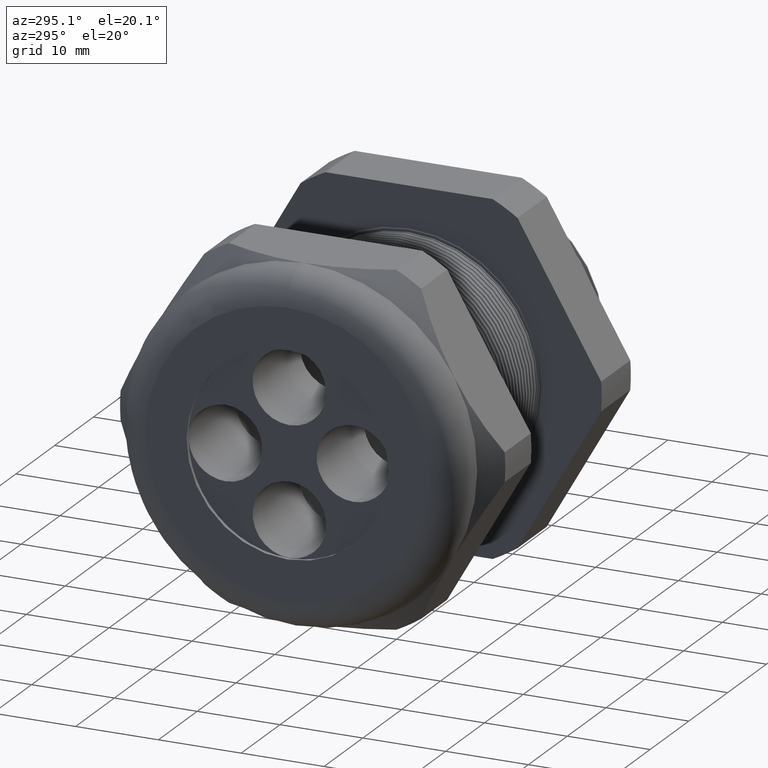
[diagram: clean part render]
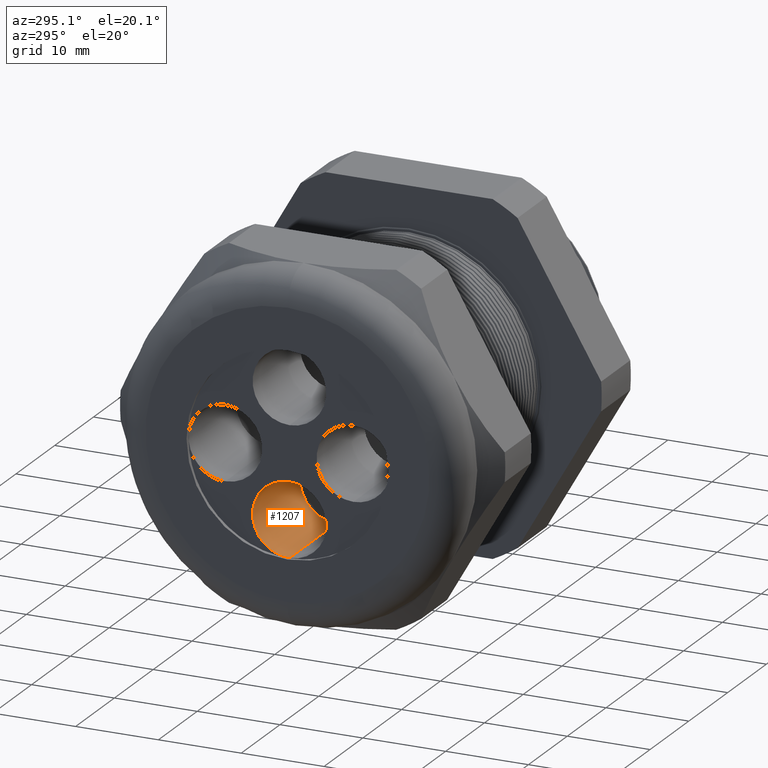
[diagram: same view with one face highlighted and labeled with its STEP entity id]
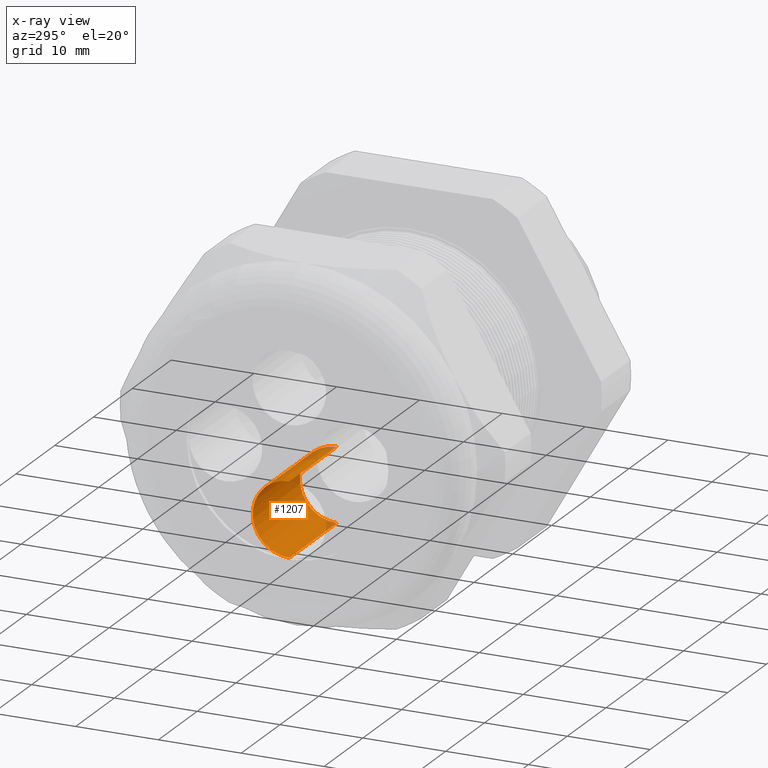
[diagram: x-ray of the same camera — body ghosted, the highlighted face saturated]
A machine part, auxiliary view. The second image highlights one B-rep face of the part: STEP entity #1207.
The next image is the same camera in x-ray: the body ghosted, the highlighted face saturated — about 7% of this face is hidden behind the body in this view.
In plain terms, the highlighted cylindrical surface (partial cylindrical patch) has radius 4.445 mm, axis along (-1, 0, 0).
Its self-contained STEP definition (entity closure, byte-faithful):
#245 = VERTEX_POINT ( 'NONE', #2401 ) ;
#246 = VERTEX_POINT ( 'NONE', #2400 ) ;
#257 = VERTEX_POINT ( 'NONE', #2448 ) ;
#287 = VERTEX_POINT ( 'NONE', #2476 ) ;
#289 = EDGE_CURVE ( 'NONE', #257, #246, #2474, .T. ) ;
#1167 = EDGE_CURVE ( 'NONE', #245, #246, #4465, .T. ) ;
#1188 = EDGE_CURVE ( 'NONE', #287, #257, #4503, .T. ) ;
#1200 = ORIENTED_EDGE ( 'NONE', *, *, #1276, .T. ) ;
#1201 = ORIENTED_EDGE ( 'NONE', *, *, #1167, .T. ) ;
#1207 = ADVANCED_FACE ( 'NONE', ( #4477 ), #4476, .F. ) ;
#1208 = ORIENTED_EDGE ( 'NONE', *, *, #289, .F. ) ;
#1209 = ORIENTED_EDGE ( 'NONE', *, *, #1188, .F. ) ;
#1251 = EDGE_LOOP ( 'NONE', ( #1208, #1209, #1200, #1201 ) ) ;
#1276 = EDGE_CURVE ( 'NONE', #287, #245, #4628, .T. ) ;
#2400 = CARTESIAN_POINT ( 'NONE',  ( -1.820000000000000100, 2.143131898507867400E-017, -0.4792999999999999500 ) ) ;
#2401 = CARTESIAN_POINT ( 'NONE',  ( -1.820000000000000100, 0.0000000000000000000, -0.1292999999999999700 ) ) ;
#2448 = CARTESIAN_POINT ( 'NONE',  ( -1.339999999999999900, 2.143131898507867400E-017, -0.4792999999999999500 ) ) ;
#2471 = DIRECTION ( 'NONE',  ( -1.000000000000000000, 0.0000000000000000000, 0.0000000000000000000 ) ) ;
#2472 = VECTOR ( 'NONE', #2471, 39.37007874015748100 ) ;
#2473 = CARTESIAN_POINT ( 'NONE',  ( 0.1200000000000000900, 2.143131898507867400E-017, -0.4792999999999999500 ) ) ;
#2474 = LINE ( 'NONE', #2473, #2472 ) ;
#2476 = CARTESIAN_POINT ( 'NONE',  ( -1.339999999999999900, 0.0000000000000000000, -0.1292999999999999700 ) ) ;
#4461 = DIRECTION ( 'NONE',  ( 0.0000000000000000000, 0.0000000000000000000, 1.000000000000000000 ) ) ;
#4462 = DIRECTION ( 'NONE',  ( -1.000000000000000000, 0.0000000000000000000, 0.0000000000000000000 ) ) ;
#4463 = CARTESIAN_POINT ( 'NONE',  ( -1.820000000000000100, 0.0000000000000000000, -0.3042999999999999600 ) ) ;
#4464 = AXIS2_PLACEMENT_3D ( 'NONE', #4463, #4462, #4461 ) ;
#4465 = CIRCLE ( 'NONE', #4464, 0.1749999999999999900 ) ;
#4470 = DIRECTION ( 'NONE',  ( 0.0000000000000000000, 0.0000000000000000000, 1.000000000000000000 ) ) ;
#4471 = DIRECTION ( 'NONE',  ( -1.000000000000000000, 0.0000000000000000000, 0.0000000000000000000 ) ) ;
#4472 = CARTESIAN_POINT ( 'NONE',  ( 0.1200000000000000900, 0.0000000000000000000, -0.3042999999999999600 ) ) ;
#4473 = AXIS2_PLACEMENT_3D ( 'NONE', #4472, #4471, #4470 ) ;
#4476 = CYLINDRICAL_SURFACE ( 'NONE', #4473, 0.1749999999999999900 ) ;
#4477 = FACE_OUTER_BOUND ( 'NONE', #1251, .T. ) ;
#4499 = DIRECTION ( 'NONE',  ( 0.0000000000000000000, 0.0000000000000000000, 1.000000000000000000 ) ) ;
#4500 = DIRECTION ( 'NONE',  ( -1.000000000000000000, 0.0000000000000000000, 0.0000000000000000000 ) ) ;
#4501 = CARTESIAN_POINT ( 'NONE',  ( -1.339999999999999900, 0.0000000000000000000, -0.3042999999999999600 ) ) ;
#4502 = AXIS2_PLACEMENT_3D ( 'NONE', #4501, #4500, #4499 ) ;
#4503 = CIRCLE ( 'NONE', #4502, 0.1749999999999999900 ) ;
#4625 = DIRECTION ( 'NONE',  ( -1.000000000000000000, 0.0000000000000000000, 0.0000000000000000000 ) ) ;
#4626 = VECTOR ( 'NONE', #4625, 39.37007874015748100 ) ;
#4627 = CARTESIAN_POINT ( 'NONE',  ( 0.1200000000000000900, 0.0000000000000000000, -0.1292999999999999700 ) ) ;
#4628 = LINE ( 'NONE', #4627, #4626 ) ;